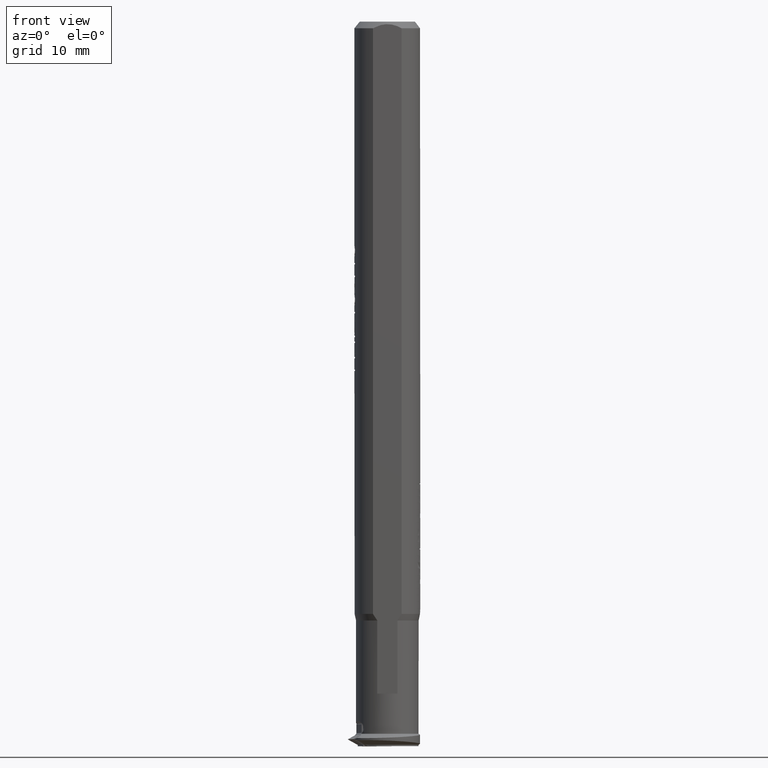
[diagram: clean part render]
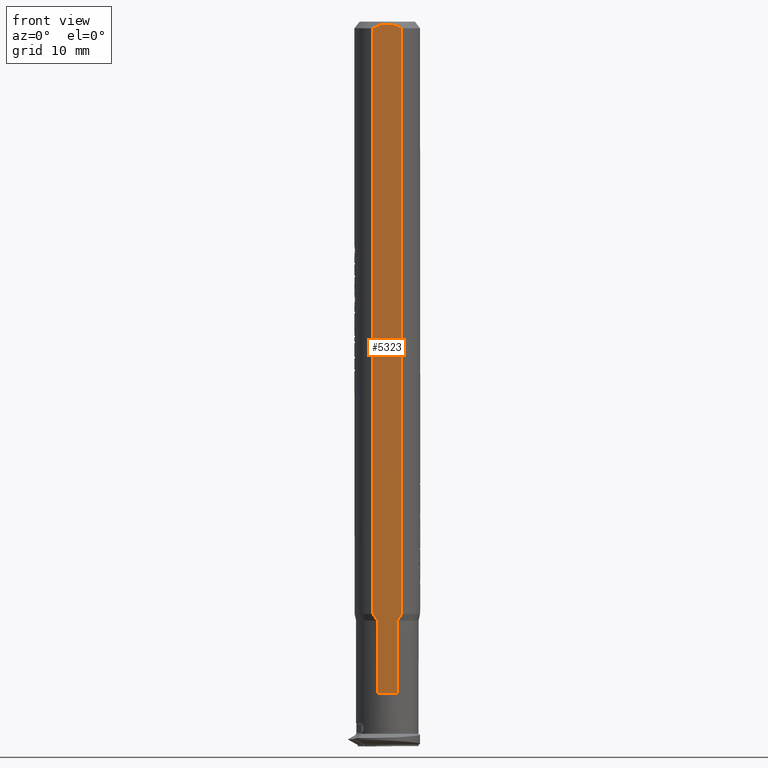
[diagram: same view with one face highlighted and labeled with its STEP entity id]
A machine part, front view. The second image highlights one B-rep face of the part: STEP entity #5323.
In plain terms, the highlighted planar face has unit normal (0, 1, 0).
Its self-contained STEP definition (entity closure, byte-faithful):
#120 = LINE ( 'NONE', #6216, #1815 ) ;
#145 = VECTOR ( 'NONE', #12687, 1000.000000000000000 ) ;
#197 = CARTESIAN_POINT ( 'NONE',  ( 19.75597794394407103, 16.47579512832780679, 33.30752637300088992 ) ) ;
#630 = ORIENTED_EDGE ( 'NONE', *, *, #4970, .F. ) ;
#947 = CARTESIAN_POINT ( 'NONE',  ( 19.44035398999679032, 16.47579512832780679, 33.55399560036379825 ) ) ;
#1008 = CARTESIAN_POINT ( 'NONE',  ( -70.48523817430265126, 16.47579512832780679, 33.27679098323604734 ) ) ;
#1271 = CARTESIAN_POINT ( 'NONE',  ( 18.75597794394730400, 16.47579512832781390, 29.60738626870036683 ) ) ;
#1451 = CARTESIAN_POINT ( 'NONE',  ( 18.75597794395271478, 16.47579512832780679, 33.96628521219825103 ) ) ;
#1815 = VECTOR ( 'NONE', #11534, 1000.000000000000000 ) ;
#1822 = LINE ( 'NONE', #9341, #9914 ) ;
#1838 = ORIENTED_EDGE ( 'NONE', *, *, #2778, .F. ) ;
#1928 = ORIENTED_EDGE ( 'NONE', *, *, #4025, .F. ) ;
#1953 = B_SPLINE_CURVE_WITH_KNOTS ( 'NONE', 3,
 ( #8524, #3326, #11475, #11677, #8394, #6498, #7244, #10643, #10376, #1008, #6289, #12899 ),
 .UNSPECIFIED., .F., .F.,
 ( 4, 2, 2, 2, 2, 4 ),
 ( 4.478189241218997214E-15, 0.001139650316903641648, 0.001709475475353222293, 0.002279300633802802938, 0.003418950950701943412, 0.004558601267601083452 ),
 .UNSPECIFIED. ) ;
#2291 = LINE ( 'NONE', #3184, #145 ) ;
#2529 = EDGE_CURVE ( 'NONE', #12935, #2785, #10640, .T. ) ;
#2676 = EDGE_CURVE ( 'NONE', #13138, #9796, #11132, .T. ) ;
#2777 = CARTESIAN_POINT ( 'NONE',  ( 30.85597794395872384, 16.47579512832780679, 33.30752637302540364 ) ) ;
#2778 = EDGE_CURVE ( 'NONE', #8892, #4869, #120, .T. ) ;
#2785 = VERTEX_POINT ( 'NONE', #12629 ) ;
#3184 = CARTESIAN_POINT ( 'NONE',  ( 30.85597794395872384, 16.47579512832780679, 33.30752637302536812 ) ) ;
#3326 = CARTESIAN_POINT ( 'NONE',  ( -70.32746099488160496, 16.47579512831178405, 29.94405649903776734 ) ) ;
#4025 = EDGE_CURVE ( 'NONE', #4869, #13138, #9339, .T. ) ;
#4142 = DIRECTION ( 'NONE',  ( -1.000000000000000000, -0.000000000000000000, 0.000000000000000000 ) ) ;
#4215 = CARTESIAN_POINT ( 'NONE',  ( -70.14402205597831141, 16.47579512832780679, 33.96628521217056829 ) ) ;
#4292 = AXIS2_PLACEMENT_3D ( 'NONE', #11115, #10227, #11183 ) ;
#4506 = CARTESIAN_POINT ( 'NONE',  ( 19.10289286135233056, 16.47579512832780679, 29.80635561964750124 ) ) ;
#4790 = LINE ( 'NONE', #8897, #9702 ) ;
#4869 = VERTEX_POINT ( 'NONE', #13321 ) ;
#4967 = FACE_OUTER_BOUND ( 'NONE', #6559, .T. ) ;
#4970 = EDGE_CURVE ( 'NONE', #8960, #9722, #1953, .T. ) ;
#5042 = DIRECTION ( 'NONE',  ( 1.000000000000000000, 0.000000000000000000, -0.000000000000000000 ) ) ;
#5151 = EDGE_CURVE ( 'NONE', #2785, #8892, #2291, .T. ) ;
#5323 = ADVANCED_FACE ( 'NONE', ( #4967 ), #10089, .F. ) ;
#6167 = CARTESIAN_POINT ( 'NONE',  ( 19.10289286135982678, 16.47579512832780679, 33.76731586124947171 ) ) ;
#6216 = CARTESIAN_POINT ( 'NONE',  ( 30.85597794395872384, 16.47579512832780679, 25.21283888763597858 ) ) ;
#6289 = CARTESIAN_POINT ( 'NONE',  ( -70.32785995021910708, 16.47579512832780324, 33.62888276879880323 ) ) ;
#6498 = CARTESIAN_POINT ( 'NONE',  ( -70.75354856189896680, 16.47579512832780679, 31.40376503260085173 ) ) ;
#6559 = EDGE_LOOP ( 'NONE', ( #7046, #630, #7680, #7492, #1928, #1838, #7754, #12017 ) ) ;
#7046 = ORIENTED_EDGE ( 'NONE', *, *, #11559, .F. ) ;
#7244 = CARTESIAN_POINT ( 'NONE',  ( -70.76881983774315188, 16.47579512832780324, 31.59321020654532575 ) ) ;
#7492 = ORIENTED_EDGE ( 'NONE', *, *, #2676, .F. ) ;
#7524 = CARTESIAN_POINT ( 'NONE',  ( 19.75597794397289420, 16.47579512834205318, 30.26614510788121137 ) ) ;
#7680 = ORIENTED_EDGE ( 'NONE', *, *, #8635, .F. ) ;
#7754 = ORIENTED_EDGE ( 'NONE', *, *, #5151, .F. ) ;
#7800 = CARTESIAN_POINT ( 'NONE',  ( 18.75597794394730400, 16.47579512832781390, 29.60738626870036683 ) ) ;
#8394 = CARTESIAN_POINT ( 'NONE',  ( -70.69392922902660814, 16.47579512832780679, 31.02561432311550149 ) ) ;
#8524 = CARTESIAN_POINT ( 'NONE',  ( -70.14402205600339357, 16.47579512832781390, 29.60738626870064749 ) ) ;
#8635 = EDGE_CURVE ( 'NONE', #9796, #8960, #4790, .T. ) ;
#8892 = VERTEX_POINT ( 'NONE', #2777 ) ;
#8897 = CARTESIAN_POINT ( 'NONE',  ( -66.24402205604140192, 16.47579512832782100, 29.60738626868050005 ) ) ;
#8960 = VERTEX_POINT ( 'NONE', #11448 ) ;
#9339 = LINE ( 'NONE', #9470, #11214 ) ;
#9341 = CARTESIAN_POINT ( 'NONE',  ( 30.85597794395872384, 16.47579512832780679, 33.96628521222120156 ) ) ;
#9470 = CARTESIAN_POINT ( 'NONE',  ( 30.85597794395872384, 16.47579512832780679, 30.26614510787626955 ) ) ;
#9702 = VECTOR ( 'NONE', #12101, 1000.000000000000000 ) ;
#9722 = VERTEX_POINT ( 'NONE', #4215 ) ;
#9775 = CARTESIAN_POINT ( 'NONE',  ( 19.44035398999388775, 16.47579512832836102, 30.01967588053583214 ) ) ;
#9796 = VERTEX_POINT ( 'NONE', #1271 ) ;
#9914 = VECTOR ( 'NONE', #5042, 1000.000000000000000 ) ;
#10089 = PLANE ( 'NONE',  #4292 ) ;
#10133 = CARTESIAN_POINT ( 'NONE',  ( 19.75597794397289420, 16.47579512834205318, 30.26614510788121137 ) ) ;
#10227 = DIRECTION ( 'NONE',  ( 0.000000000000000000, 1.000000000000000000, 0.000000000000000000 ) ) ;
#10376 = CARTESIAN_POINT ( 'NONE',  ( -70.70641876163939799, 16.47579512832780324, 32.54738380635319572 ) ) ;
#10640 = B_SPLINE_CURVE_WITH_KNOTS ( 'NONE', 3,
 ( #12644, #6167, #947, #197 ),
 .UNSPECIFIED., .F., .F.,
 ( 4, 4 ),
 ( 7.631733714431407189E-15, 0.001197482028334904665 ),
 .UNSPECIFIED. ) ;
#10643 = CARTESIAN_POINT ( 'NONE',  ( -70.76942048525684470, 16.47579512832780679, 32.16269583519702735 ) ) ;
#11115 = CARTESIAN_POINT ( 'NONE',  ( 30.85597794395872384, 16.47579512832780679, 25.21283888763597858 ) ) ;
#11132 = B_SPLINE_CURVE_WITH_KNOTS ( 'NONE', 3,
 ( #7524, #9775, #4506, #7800 ),
 .UNSPECIFIED., .F., .F.,
 ( 4, 4 ),
 ( 1.200715191505367718E-14, 0.001197482028350039043 ),
 .UNSPECIFIED. ) ;
#11183 = DIRECTION ( 'NONE',  ( 0.000000000000000000, -0.000000000000000000, 1.000000000000000000 ) ) ;
#11214 = VECTOR ( 'NONE', #4142, 1000.000000000000000 ) ;
#11448 = CARTESIAN_POINT ( 'NONE',  ( -70.14402205600339357, 16.47579512832781390, 29.60738626870064749 ) ) ;
#11475 = CARTESIAN_POINT ( 'NONE',  ( -70.48299498486649384, 16.47579512832779614, 30.29133607097869429 ) ) ;
#11534 = DIRECTION ( 'NONE',  ( -0.000000000000000000, 0.000000000000000000, -1.000000000000000000 ) ) ;
#11559 = EDGE_CURVE ( 'NONE', #9722, #12935, #1822, .T. ) ;
#11677 = CARTESIAN_POINT ( 'NONE',  ( -70.64949270034172457, 16.47579512832779969, 30.83765374475545329 ) ) ;
#12017 = ORIENTED_EDGE ( 'NONE', *, *, #2529, .F. ) ;
#12101 = DIRECTION ( 'NONE',  ( -1.000000000000000000, -0.000000000000000000, -0.000000000000000000 ) ) ;
#12629 = CARTESIAN_POINT ( 'NONE',  ( 19.75597794394407103, 16.47579512832780679, 33.30752637300088992 ) ) ;
#12644 = CARTESIAN_POINT ( 'NONE',  ( 18.75597794395271478, 16.47579512832780679, 33.96628521219825103 ) ) ;
#12687 = DIRECTION ( 'NONE',  ( 1.000000000000000000, 0.000000000000000000, -0.000000000000000000 ) ) ;
#12899 = CARTESIAN_POINT ( 'NONE',  ( -70.14402205597831141, 16.47579512832780679, 33.96628521217056829 ) ) ;
#12935 = VERTEX_POINT ( 'NONE', #1451 ) ;
#13138 = VERTEX_POINT ( 'NONE', #10133 ) ;
#13321 = CARTESIAN_POINT ( 'NONE',  ( 30.85597794395872384, 16.47579512832780679, 30.26614510787628021 ) ) ;